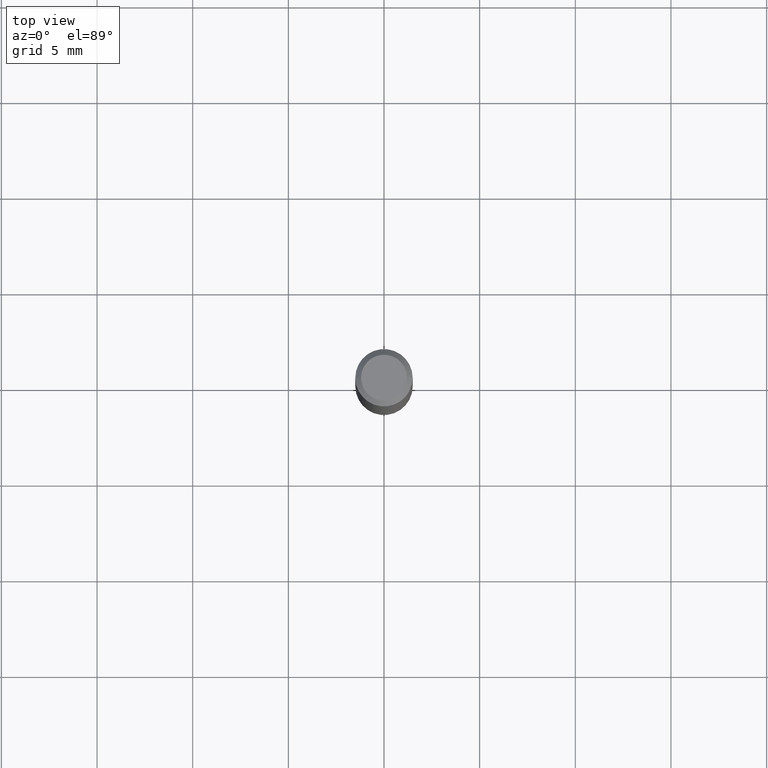
[diagram: clean part render]
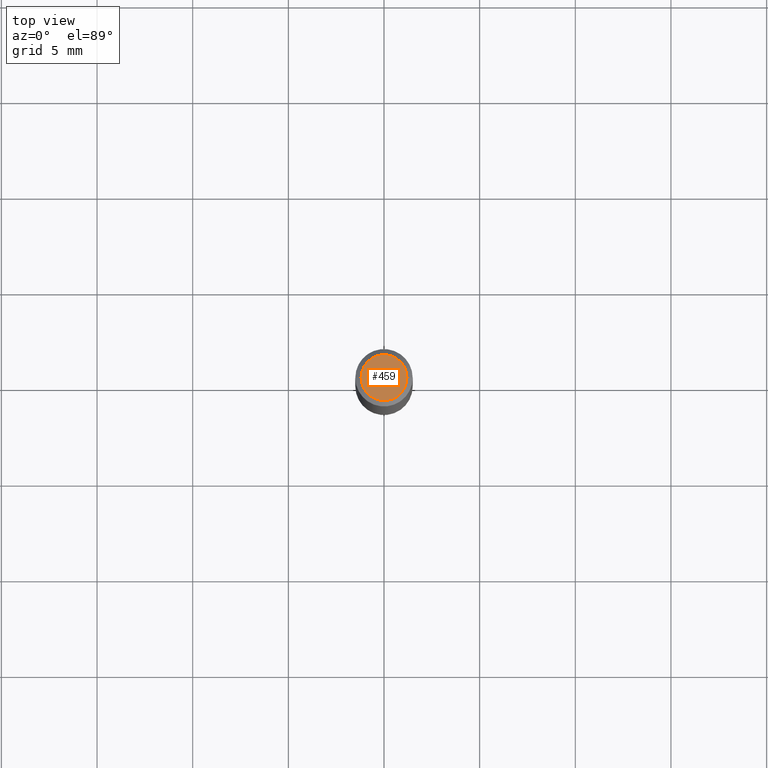
[diagram: same view with one face highlighted and labeled with its STEP entity id]
A machine part, top view. The second image highlights one B-rep face of the part: STEP entity #459.
In plain terms, the highlighted planar face has unit normal (0, -0, -1).
Its self-contained STEP definition (entity closure, byte-faithful):
#25 = ORIENTED_EDGE ( 'NONE', *, *, #439, .T. ) ;
#34 = VERTEX_POINT ( 'NONE', #149 ) ;
#43 = DIRECTION ( 'NONE',  ( -1.000000000000000000, 6.982962677686265922E-15, -4.876176775795935793E-29 ) ) ;
#64 = CIRCLE ( 'NONE', #305, 0.04724000000000000421 ) ;
#94 = CARTESIAN_POINT ( 'NONE',  ( 0.04724000000000000421, -3.852183633974369838E-16, -3.380025165621689721E-19 ) ) ;
#98 = DIRECTION ( 'NONE',  ( 1.000000000000000000, -6.982962677686266711E-15, 4.876185090822587894E-29 ) ) ;
#104 = DIRECTION ( 'NONE',  ( -2.445468806185136597E-29, 3.491481338843145583E-15, 1.000000000000000000 ) ) ;
#127 = CIRCLE ( 'NONE', #424, 0.04724000000000000421 ) ;
#149 = CARTESIAN_POINT ( 'NONE',  ( -0.04724000000000000421, 3.504923541997677355E-16, -3.380025165670481712E-19 ) ) ;
#175 = CARTESIAN_POINT ( 'NONE',  ( 8.265746106709734507E-48, -1.180129479067563789E-33, -3.380025165646692144E-19 ) ) ;
#242 = DIRECTION ( 'NONE',  ( -2.445468806185136597E-29, 3.491481338843145583E-15, 1.000000000000000000 ) ) ;
#254 = PLANE ( 'NONE',  #290 ) ;
#288 = EDGE_CURVE ( 'NONE', #297, #34, #127, .T. ) ;
#290 = AXIS2_PLACEMENT_3D ( 'NONE', #369, #295, #43 ) ;
#295 = DIRECTION ( 'NONE',  ( 2.438088387897960049E-29, -3.491481338843145188E-15, -1.000000000000000000 ) ) ;
#297 = VERTEX_POINT ( 'NONE', #94 ) ;
#305 = AXIS2_PLACEMENT_3D ( 'NONE', #175, #104, #326 ) ;
#326 = DIRECTION ( 'NONE',  ( 1.000000000000000000, -6.982962677686266711E-15, 4.876185090822587894E-29 ) ) ;
#369 = CARTESIAN_POINT ( 'NONE',  ( 4.132873053354867254E-48, -5.900647395337818946E-34, -1.690012582823346072E-19 ) ) ;
#373 = EDGE_LOOP ( 'NONE', ( #25, #485 ) ) ;
#403 = CARTESIAN_POINT ( 'NONE',  ( 8.265746106709734507E-48, -1.180129479067563789E-33, -3.380025165646692144E-19 ) ) ;
#424 = AXIS2_PLACEMENT_3D ( 'NONE', #403, #242, #98 ) ;
#439 = EDGE_CURVE ( 'NONE', #34, #297, #64, .T. ) ;
#442 = FACE_OUTER_BOUND ( 'NONE', #373, .T. ) ;
#459 = ADVANCED_FACE ( 'NONE', ( #442 ), #254, .F. ) ;
#485 = ORIENTED_EDGE ( 'NONE', *, *, #288, .T. ) ;